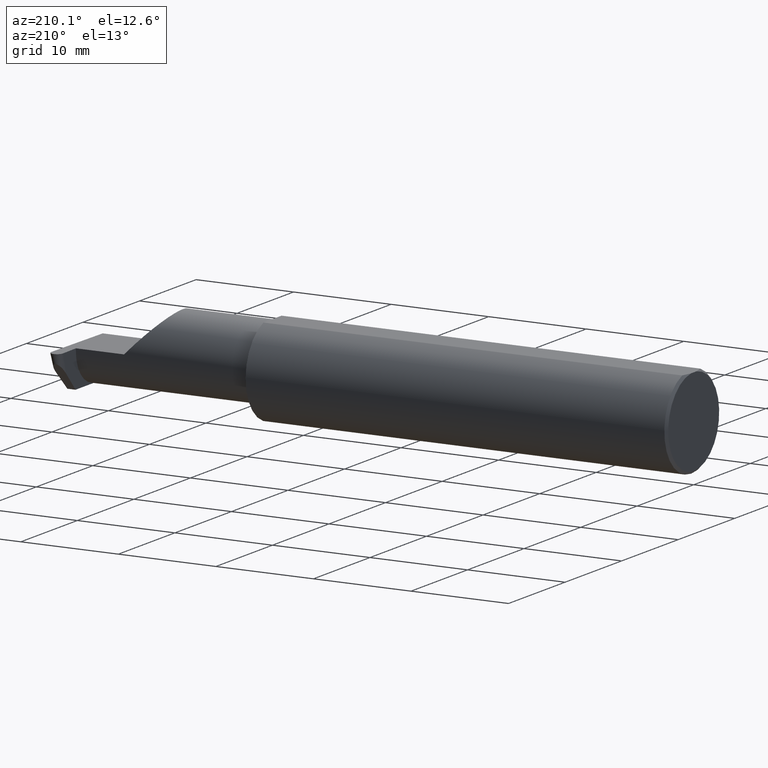
[diagram: clean part render]
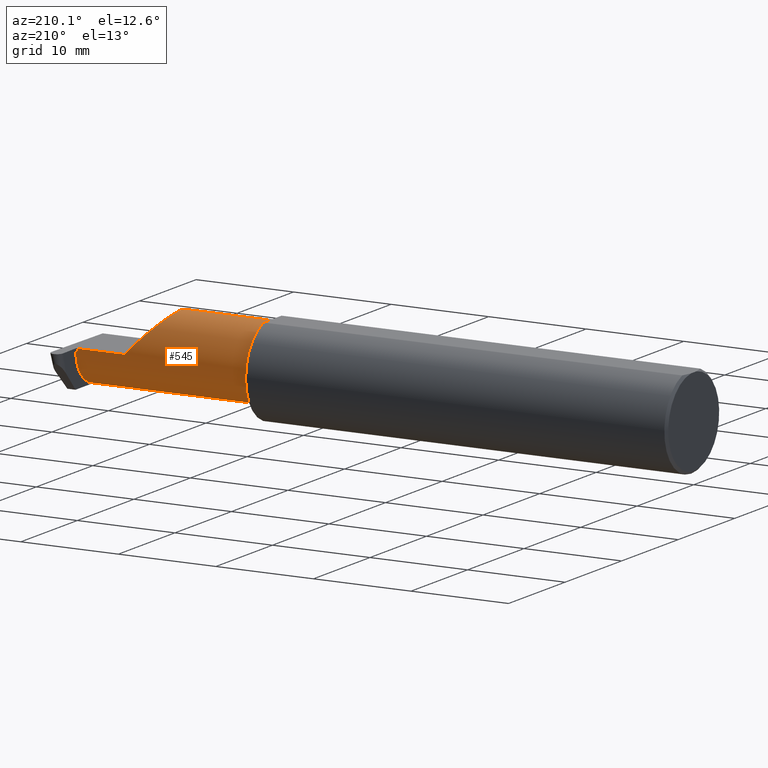
[diagram: same view with one face highlighted and labeled with its STEP entity id]
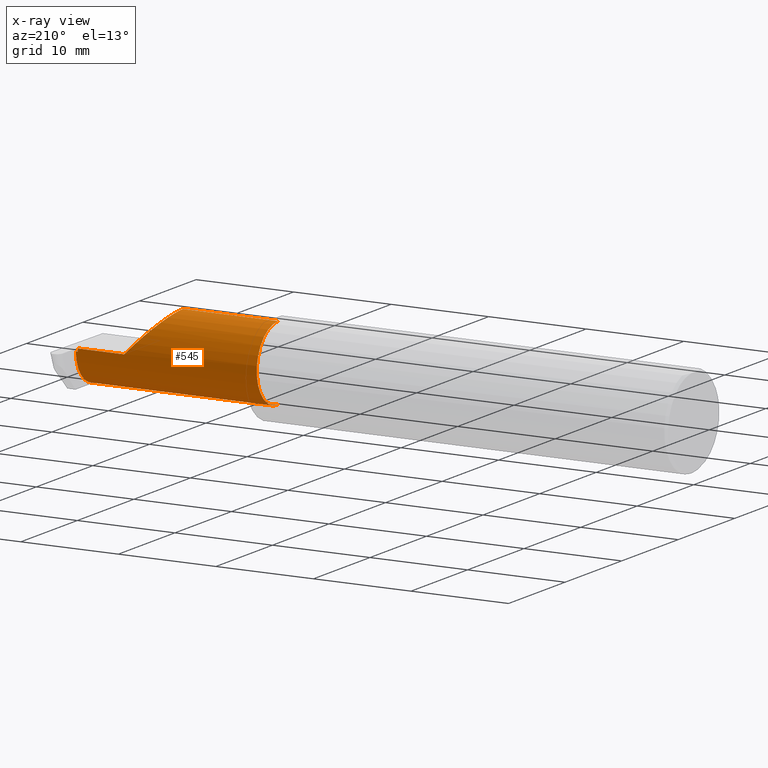
[diagram: x-ray of the same camera — body ghosted, the highlighted face saturated]
A machine part, auxiliary view. The second image highlights one B-rep face of the part: STEP entity #545.
The next image is the same camera in x-ray: the body ghosted, the highlighted face saturated — about 0% of this face is hidden behind the body in this view.
In plain terms, the highlighted cylindrical surface (partial cylindrical patch) has radius 3.81 mm, axis along (-1, -0, -0).
Its self-contained STEP definition (entity closure, byte-faithful):
#6 = VERTEX_POINT ( 'NONE', #202 ) ;
#20 = VECTOR ( 'NONE', #766, 39.37007874015748143 ) ;
#24 = DIRECTION ( 'NONE',  ( -1.000000000000000000, -0.000000000000000000, -0.000000000000000000 ) ) ;
#26 = AXIS2_PLACEMENT_3D ( 'NONE', #726, #95, #169 ) ;
#44 = CARTESIAN_POINT ( 'NONE',  ( 2.454977397848501219, 0.06628460753894979685, -0.01046347106162132459 ) ) ;
#53 = ORIENTED_EDGE ( 'NONE', *, *, #709, .F. ) ;
#54 =( BOUNDED_CURVE ( )  B_SPLINE_CURVE ( 3, ( #284, #421, #662, #533 ),
 .UNSPECIFIED., .F., .F. ) 
 B_SPLINE_CURVE_WITH_KNOTS ( ( 4, 4 ),
 ( 0.000000000000000000, 1.570796326794896336 ),
 .UNSPECIFIED. ) 
 CURVE ( )  GEOMETRIC_REPRESENTATION_ITEM ( )  RATIONAL_B_SPLINE_CURVE ( ( 1.000000000000000000, 0.8047378541243650485, 0.8047378541243650485, 1.000000000000000000 ) ) 
 REPRESENTATION_ITEM ( '' )  );
#95 = DIRECTION ( 'NONE',  ( -1.000000000000000000, -0.000000000000000000, -0.000000000000000000 ) ) ;
#98 = LINE ( 'NONE', #475, #620 ) ;
#103 = CARTESIAN_POINT ( 'NONE',  ( 2.447424076630286827, 0.06652820251299110255, -0.003487823687207092585 ) ) ;
#114 = CARTESIAN_POINT ( 'NONE',  ( 2.460012367653796606, -0.0002709026822648819086, -0.1500000000000000222 ) ) ;
#115 = VERTEX_POINT ( 'NONE', #329 ) ;
#118 = CARTESIAN_POINT ( 'NONE',  ( 1.699999999999998623, 0.06628460753895903945, -0.01046347106182767515 ) ) ;
#122 = ORIENTED_EDGE ( 'NONE', *, *, #529, .T. ) ;
#127 = CIRCLE ( 'NONE', #374, 0.1499999999999999944 ) ;
#155 = EDGE_CURVE ( 'NONE', #503, #6, #246, .T. ) ;
#169 = DIRECTION ( 'NONE',  ( 0.000000000000000000, 0.000000000000000000, 1.000000000000000000 ) ) ;
#175 = VERTEX_POINT ( 'NONE', #729 ) ;
#178 = CARTESIAN_POINT ( 'NONE',  ( 2.460115337567889249, -0.08334999999999999354, -0.1500000000000000222 ) ) ;
#188 = ORIENTED_EDGE ( 'NONE', *, *, #798, .T. ) ;
#199 = CARTESIAN_POINT ( 'NONE',  ( 1.699999999999999956, 0.06664999999999998703, 9.797174393178831081E-17 ) ) ;
#202 = CARTESIAN_POINT ( 'NONE',  ( 2.447180481656269446, 0.06628460753897345847, -0.01046347106162128122 ) ) ;
#205 = LINE ( 'NONE', #199, #508 ) ;
#212 = CARTESIAN_POINT ( 'NONE',  ( 2.447180481656269446, 0.06628460753897345847, -0.01046347106162128122 ) ) ;
#222 = CARTESIAN_POINT ( 'NONE',  ( 2.447545874117295739, 0.06664999999999991764, 0.000000000000000000 ) ) ;
#231 = DIRECTION ( 'NONE',  ( -1.000000000000000000, -0.000000000000000000, -0.000000000000000000 ) ) ;
#244 = EDGE_CURVE ( 'NONE', #400, #503, #610, .T. ) ;
#246 = LINE ( 'NONE', #118, #355 ) ;
#257 = EDGE_LOOP ( 'NONE', ( #476, #759, #577, #53, #122, #188, #383, #570 ) ) ;
#261 = VERTEX_POINT ( 'NONE', #297 ) ;
#279 = CYLINDRICAL_SURFACE ( 'NONE', #26, 0.1499999999999999944 ) ;
#284 = CARTESIAN_POINT ( 'NONE',  ( 2.109999999999998987, -0.08334999999999999354, 0.1499999999999999944 ) ) ;
#292 = CARTESIAN_POINT ( 'NONE',  ( 2.454977397848501219, 0.06628460753894979685, -0.01046347106162132459 ) ) ;
#297 = CARTESIAN_POINT ( 'NONE',  ( 1.724999999999999867, -0.08334999999999999354, 0.1499999999999999944 ) ) ;
#329 = CARTESIAN_POINT ( 'NONE',  ( 2.260000000000000231, 0.06664999999999998703, 9.797174393178831081E-17 ) ) ;
#355 = VECTOR ( 'NONE', #231, 39.37007874015748143 ) ;
#374 = AXIS2_PLACEMENT_3D ( 'NONE', #781, #528, #416 ) ;
#382 = CARTESIAN_POINT ( 'NONE',  ( 2.460115337567889249, -0.08334999999999999354, -0.1500000000000000222 ) ) ;
#383 = ORIENTED_EDGE ( 'NONE', *, *, #441, .F. ) ;
#396 = CARTESIAN_POINT ( 'NONE',  ( 1.699999999999999956, -0.08334999999999997966, -0.1499999999999999944 ) ) ;
#400 = VERTEX_POINT ( 'NONE', #382 ) ;
#416 = DIRECTION ( 'NONE',  ( 0.000000000000000000, 0.000000000000000000, 1.000000000000000000 ) ) ;
#421 = CARTESIAN_POINT ( 'NONE',  ( 2.109999999999998543, 0.004517965644035734120, 0.1499999999999999667 ) ) ;
#429 = CARTESIAN_POINT ( 'NONE',  ( 2.457926070388992468, 0.06048930266824078389, -0.09334019187383280070 ) ) ;
#441 = EDGE_CURVE ( 'NONE', #6, #527, #809, .T. ) ;
#447 = DIRECTION ( 'NONE',  ( 1.000000000000000000, 0.000000000000000000, 0.000000000000000000 ) ) ;
#460 = CARTESIAN_POINT ( 'NONE',  ( 2.447302279143278358, 0.06640640502598228745, -0.006975647374414186037 ) ) ;
#472 = FACE_OUTER_BOUND ( 'NONE', #257, .T. ) ;
#475 = CARTESIAN_POINT ( 'NONE',  ( 1.699999999999999956, -0.08334999999999999354, 0.1499999999999999944 ) ) ;
#476 = ORIENTED_EDGE ( 'NONE', *, *, #244, .F. ) ;
#503 = VERTEX_POINT ( 'NONE', #292 ) ;
#508 = VECTOR ( 'NONE', #447, 39.37007874015748143 ) ;
#523 = CARTESIAN_POINT ( 'NONE',  ( 2.447545874117295739, 0.06664999999999991764, 0.000000000000000000 ) ) ;
#527 = VERTEX_POINT ( 'NONE', #222 ) ;
#528 = DIRECTION ( 'NONE',  ( -1.000000000000000000, -0.000000000000000000, -0.000000000000000000 ) ) ;
#529 = EDGE_CURVE ( 'NONE', #814, #115, #54, .T. ) ;
#533 = CARTESIAN_POINT ( 'NONE',  ( 2.260000000000000231, 0.06664999999999998703, 9.797174393178831081E-17 ) ) ;
#545 = ADVANCED_FACE ( 'NONE', ( #472 ), #279, .T. ) ;
#554 = EDGE_CURVE ( 'NONE', #261, #175, #127, .T. ) ;
#570 = ORIENTED_EDGE ( 'NONE', *, *, #155, .F. ) ;
#571 = EDGE_CURVE ( 'NONE', #400, #175, #797, .T. ) ;
#577 = ORIENTED_EDGE ( 'NONE', *, *, #554, .F. ) ;
#610 =( BOUNDED_CURVE ( )  B_SPLINE_CURVE ( 3, ( #178, #114, #429, #44 ),
 .UNSPECIFIED., .F., .F. ) 
 B_SPLINE_CURVE_WITH_KNOTS ( ( 4, 4 ),
 ( 3.176499238629679756, 4.677482395344775057 ),
 .UNSPECIFIED. ) 
 CURVE ( )  GEOMETRIC_REPRESENTATION_ITEM ( )  RATIONAL_B_SPLINE_CURVE ( ( 1.000000000000000000, 0.8209024677461199682, 0.8209024677461199682, 1.000000000000000000 ) ) 
 REPRESENTATION_ITEM ( '' )  );
#620 = VECTOR ( 'NONE', #24, 39.37007874015748143 ) ;
#662 = CARTESIAN_POINT ( 'NONE',  ( 2.172132034355963359, 0.06664999999999998703, 0.08786796564403573373 ) ) ;
#698 = CARTESIAN_POINT ( 'NONE',  ( 2.109999999999998987, -0.08334999999999999354, 0.1499999999999999944 ) ) ;
#709 = EDGE_CURVE ( 'NONE', #814, #261, #98, .T. ) ;
#726 = CARTESIAN_POINT ( 'NONE',  ( 1.699999999999999956, -0.08334999999999999354, 0.000000000000000000 ) ) ;
#729 = CARTESIAN_POINT ( 'NONE',  ( 1.724999999999999867, -0.08334999999999997966, -0.1499999999999999944 ) ) ;
#759 = ORIENTED_EDGE ( 'NONE', *, *, #571, .T. ) ;
#766 = DIRECTION ( 'NONE',  ( -1.000000000000000000, -0.000000000000000000, -0.000000000000000000 ) ) ;
#781 = CARTESIAN_POINT ( 'NONE',  ( 1.724999999999999867, -0.08334999999999999354, 0.000000000000000000 ) ) ;
#797 = LINE ( 'NONE', #396, #20 ) ;
#798 = EDGE_CURVE ( 'NONE', #115, #527, #205, .T. ) ;
#809 = B_SPLINE_CURVE_WITH_KNOTS ( 'NONE', 3,
 ( #212, #460, #103, #523 ),
 .UNSPECIFIED., .F., .F.,
 ( 4, 4 ),
 ( 0.000000000000000000, 1.000000000000000000 ),
 .UNSPECIFIED. ) ;
#814 = VERTEX_POINT ( 'NONE', #698 ) ;